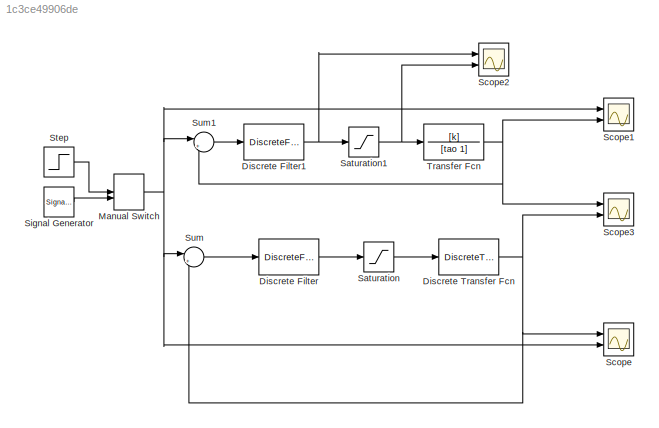
MODEL slx_1c3ce49906de
KIND model
CONFIG AbsTol = auto
CONFIG EnableMultiTasking = off
CONFIG FixedStep = auto
CONFIG MaxStep = auto
CONFIG MinStep = auto
CONFIG RelTol = 1e-3
CONFIG SampleTimeConstraint = Unconstrained
CONFIG SolverName = VariableStepAuto
CONFIG StartTime = 0.0
CONFIG StopTime = 6
BLOCK [DiscreteFilter] Discrete Filter
  Denominator = [1 -2 1]
  InputPortMap = u0
  Numerator = [r0 r1 r2]
  Ports = [1, 1]
  SampleTime = tm
BLOCK [DiscreteFilter] Discrete Filter1
  Denominator = [1 -2 1]
  InputPortMap = u0
  Numerator = [r0 r1 r2]
  Ports = [1, 1]
  SampleTime = tm
BLOCK [DiscreteTransferFcn] Discrete Transfer Fcn
  Denominator = A
  InputPortMap = u0
  Numerator = B
  Ports = [1, 1]
  SampleTime = tm
BLOCK [ManualSwitch] Manual Switch
  CurrentSetting = 0
BLOCK [Saturate] Saturation
  LowerLimit = -8.2
  UpperLimit = 8.2
BLOCK [Saturate] Saturation1
  LowerLimit = -8.2
  UpperLimit = 8.2
BLOCK [Scope] Scope
  Floating = off
  NumInputPorts = 2
  Ports = [2]
  ScopeSpecificationString = Simulink.scopes.TimeScopeBlockCfg('CurrentConfiguration', extmgr.ConfigurationSet(extmgr.Configuration('Core','General UI',true),extmgr.Configuration('Core','Source UI',true),extmgr.Configuration('Sources','WiredSimulink',true),extmgr.Configuration('Visuals','Time Domain',true,'SerializedDisplays',{struct('MinYLimReal','-1.92719','MaxYLimReal','2.85272','YLabelReal','','MinYLimMag','0.00000','MaxY...<+1401ch>
BLOCK [Scope] Scope1
  Floating = off
  NumInputPorts = 2
  Ports = [2]
  ScopeSpecificationString = Simulink.scopes.TimeScopeBlockCfg('CurrentConfiguration', extmgr.ConfigurationSet(extmgr.Configuration('Core','General UI',true),extmgr.Configuration('Core','Source UI',true),extmgr.Configuration('Sources','WiredSimulink',true,'DataLoggingVariableName','ScopeData1'),extmgr.Configuration('Visuals','Time Domain',true,'SerializedDisplays',{struct('MinYLimReal','-2.95636','MaxYLimReal','2.96464','YLab...<+1431ch>
BLOCK [Scope] Scope2
  Floating = off
  NumInputPorts = 2
  Ports = [2]
  ScopeSpecificationString = Simulink.scopes.TimeScopeBlockCfg('CurrentConfiguration', extmgr.ConfigurationSet(extmgr.Configuration('Core','General UI',true),extmgr.Configuration('Core','Source UI',true),extmgr.Configuration('Sources','WiredSimulink',true,'DataLoggingVariableName','ScopeData2'),extmgr.Configuration('Visuals','Time Domain',true,'SerializedDisplays',{struct('MinYLimReal','-20.50479','MaxYLimReal','20.59883','YL...<+1395ch>
BLOCK [Scope] Scope3
  Floating = off
  NumInputPorts = 2
  Ports = [2]
  ScopeSpecificationString = Simulink.scopes.TimeScopeBlockCfg('CurrentConfiguration', extmgr.ConfigurationSet(extmgr.Configuration('Core','General UI',true),extmgr.Configuration('Core','Source UI',true),extmgr.Configuration('Sources','WiredSimulink',true,'DataLoggingVariableName','ScopeData3'),extmgr.Configuration('Visuals','Time Domain',true,'SerializedDisplays',{struct('MinYLimReal','-1.53975','MaxYLimReal','2.03808','YLab...<+1450ch>
BLOCK [SignalGenerator] Signal Generator
  Frequency = 0.1
  Ports = [0, 1]
  WaveForm = square
BLOCK [Step] Step
  SampleTime = 0
  Time = 0
BLOCK [Sum] Sum
  Inputs = |+-
  Ports = [2, 1]
BLOCK [Sum] Sum1
  Inputs = |+-
  Ports = [2, 1]
BLOCK [TransferFcn] Transfer Fcn
  Denominator = [tao 1]
  Numerator = [k]
NET Discrete Filter1:1 -> Saturation1:1, Scope2:1
LINE Discrete Filter:1 -> Saturation:1
NET Discrete Transfer Fcn:1 -> Scope3:2, Scope:1, Sum:2
NET Manual Switch:1 -> Scope1:1, Scope:2, Sum1:1, Sum:1
NET Saturation1:1 -> Scope2:2, Transfer Fcn:1
LINE Saturation:1 -> Discrete Transfer Fcn:1
LINE Signal Generator:1 -> Manual Switch:2
LINE Step:1 -> Manual Switch:1
LINE Sum1:1 -> Discrete Filter1:1
LINE Sum:1 -> Discrete Filter:1
NET Transfer Fcn:1 -> Scope1:2, Scope3:1, Sum1:2
note: NET lines group one-source signal fan-out (src -> all destinations, sorted); 1:1 wires keep LINE
